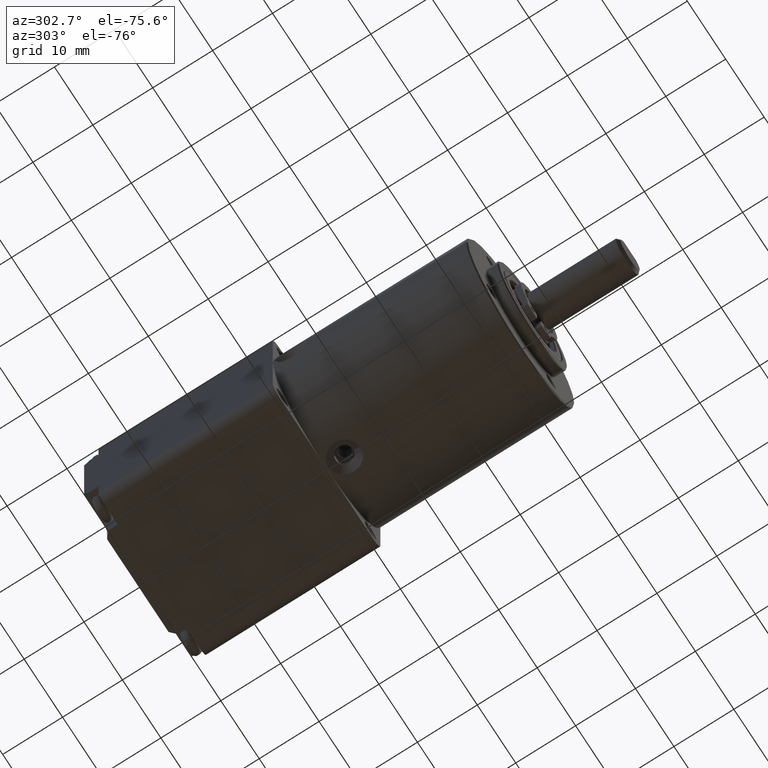
[diagram: clean part render]
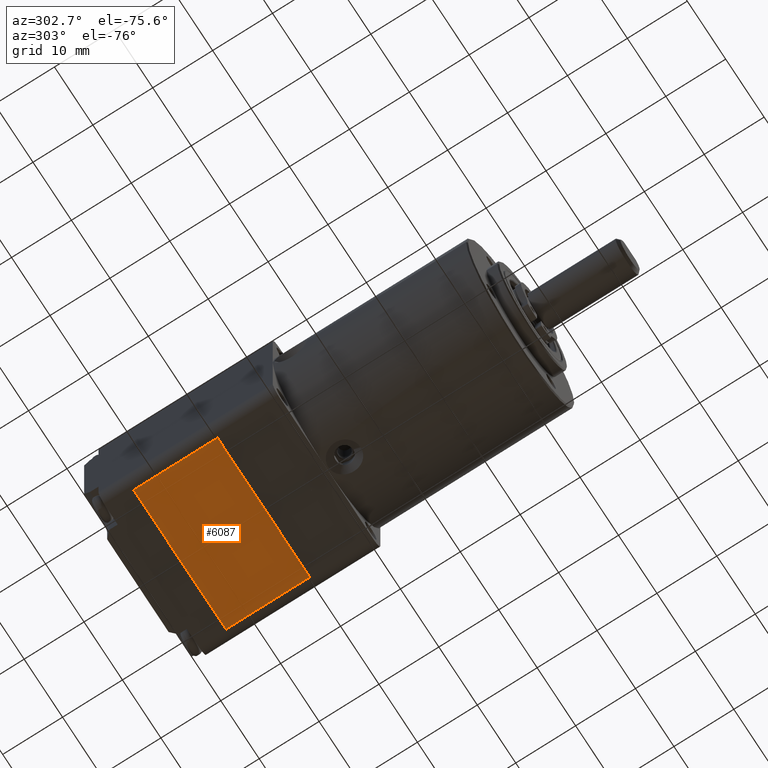
[diagram: same view with one face highlighted and labeled with its STEP entity id]
A machine part, auxiliary view. The second image highlights one B-rep face of the part: STEP entity #6087.
In plain terms, the highlighted planar face has unit normal (0, 0, 1).
Its self-contained STEP definition (entity closure, byte-faithful):
#70 = LINE ( 'NONE', #24767, #30394 ) ;
#108 = ORIENTED_EDGE ( 'NONE', *, *, #27904, .F. ) ;
#220 = CARTESIAN_POINT ( 'NONE',  ( -11.99999999999998934, 14.00000000000000000, -14.00000000000000178 ) ) ;
#778 = LINE ( 'NONE', #3651, #7244 ) ;
#1123 = EDGE_LOOP ( 'NONE', ( #21079, #30926, #108, #6474 ) ) ;
#1981 = DIRECTION ( 'NONE',  ( 1.000000000000000000, 0.000000000000000000, -0.000000000000000000 ) ) ;
#3059 = CARTESIAN_POINT ( 'NONE',  ( -11.99999999999998934, 0.000000000000000000, -14.00000000000000178 ) ) ;
#3651 = CARTESIAN_POINT ( 'NONE',  ( 11.99999999999998224, 14.00000000000000000, -14.00000000000000178 ) ) ;
#6087 = ADVANCED_FACE ( 'NONE', ( #11910 ), #9179, .F. ) ;
#6474 = ORIENTED_EDGE ( 'NONE', *, *, #25742, .T. ) ;
#7038 = DIRECTION ( 'NONE',  ( -0.000000000000000000, -1.000000000000000000, -0.000000000000000000 ) ) ;
#7244 = VECTOR ( 'NONE', #13443, 1000.000000000000000 ) ;
#9179 = PLANE ( 'NONE',  #29354 ) ;
#9287 = LINE ( 'NONE', #11688, #22507 ) ;
#10890 = CARTESIAN_POINT ( 'NONE',  ( 11.99999999999998224, 0.000000000000000000, -14.00000000000000178 ) ) ;
#11688 = CARTESIAN_POINT ( 'NONE',  ( -11.99999999999998934, 14.00000000000000000, -14.00000000000000178 ) ) ;
#11910 = FACE_OUTER_BOUND ( 'NONE', #1123, .T. ) ;
#12739 = EDGE_CURVE ( 'NONE', #23686, #22106, #15711, .T. ) ;
#13443 = DIRECTION ( 'NONE',  ( -0.000000000000000000, -1.000000000000000000, -0.000000000000000000 ) ) ;
#14837 = VERTEX_POINT ( 'NONE', #30408 ) ;
#15122 = DIRECTION ( 'NONE',  ( -1.000000000000000000, -0.000000000000000000, -0.000000000000000000 ) ) ;
#15711 = LINE ( 'NONE', #3059, #22281 ) ;
#19292 = CARTESIAN_POINT ( 'NONE',  ( -11.99999999999998934, 14.00000000000000000, -14.00000000000000178 ) ) ;
#20210 = DIRECTION ( 'NONE',  ( -1.000000000000000000, -0.000000000000000000, -0.000000000000000000 ) ) ;
#21079 = ORIENTED_EDGE ( 'NONE', *, *, #12739, .T. ) ;
#22106 = VERTEX_POINT ( 'NONE', #24171 ) ;
#22281 = VECTOR ( 'NONE', #20210, 1000.000000000000000 ) ;
#22507 = VECTOR ( 'NONE', #7038, 1000.000000000000000 ) ;
#23037 = VERTEX_POINT ( 'NONE', #220 ) ;
#23686 = VERTEX_POINT ( 'NONE', #10890 ) ;
#24171 = CARTESIAN_POINT ( 'NONE',  ( -11.99999999999998934, 0.000000000000000000, -14.00000000000000178 ) ) ;
#24429 = DIRECTION ( 'NONE',  ( 0.000000000000000000, 0.000000000000000000, 1.000000000000000000 ) ) ;
#24767 = CARTESIAN_POINT ( 'NONE',  ( -11.99999999999998934, 14.00000000000000000, -14.00000000000000178 ) ) ;
#25742 = EDGE_CURVE ( 'NONE', #14837, #23686, #778, .T. ) ;
#27904 = EDGE_CURVE ( 'NONE', #14837, #23037, #70, .T. ) ;
#29354 = AXIS2_PLACEMENT_3D ( 'NONE', #19292, #24429, #1981 ) ;
#29632 = EDGE_CURVE ( 'NONE', #23037, #22106, #9287, .T. ) ;
#30394 = VECTOR ( 'NONE', #15122, 1000.000000000000000 ) ;
#30408 = CARTESIAN_POINT ( 'NONE',  ( 11.99999999999998224, 14.00000000000000000, -14.00000000000000178 ) ) ;
#30926 = ORIENTED_EDGE ( 'NONE', *, *, #29632, .F. ) ;